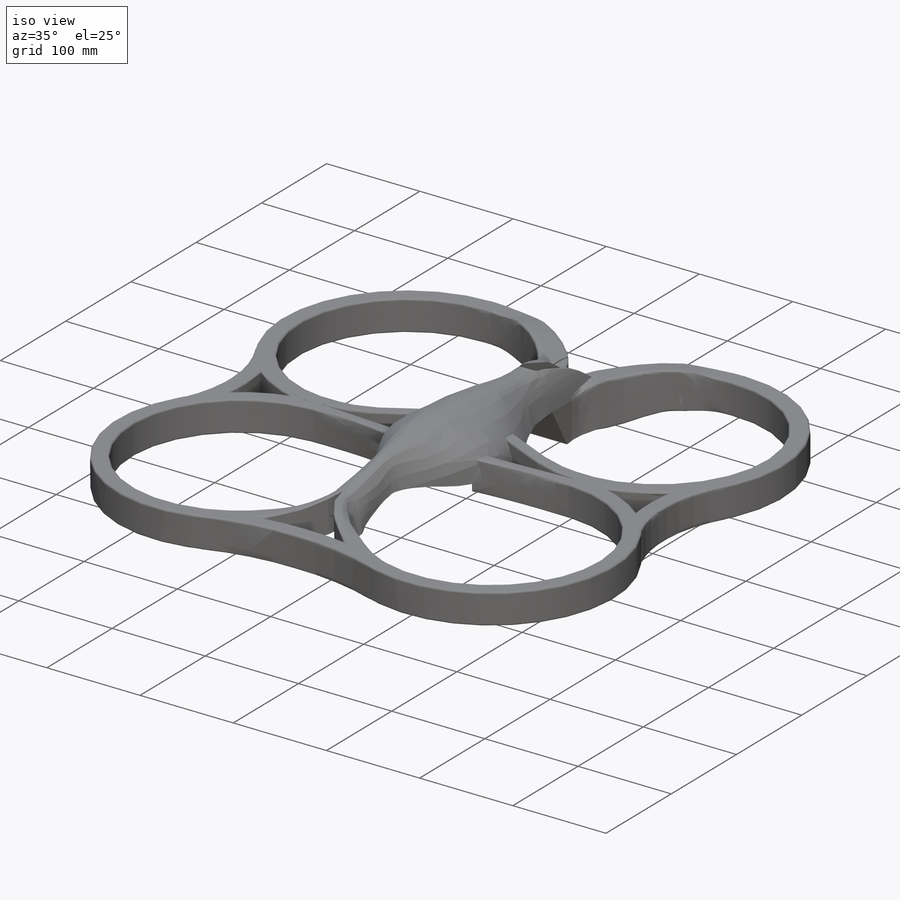
[diagram: iso view]
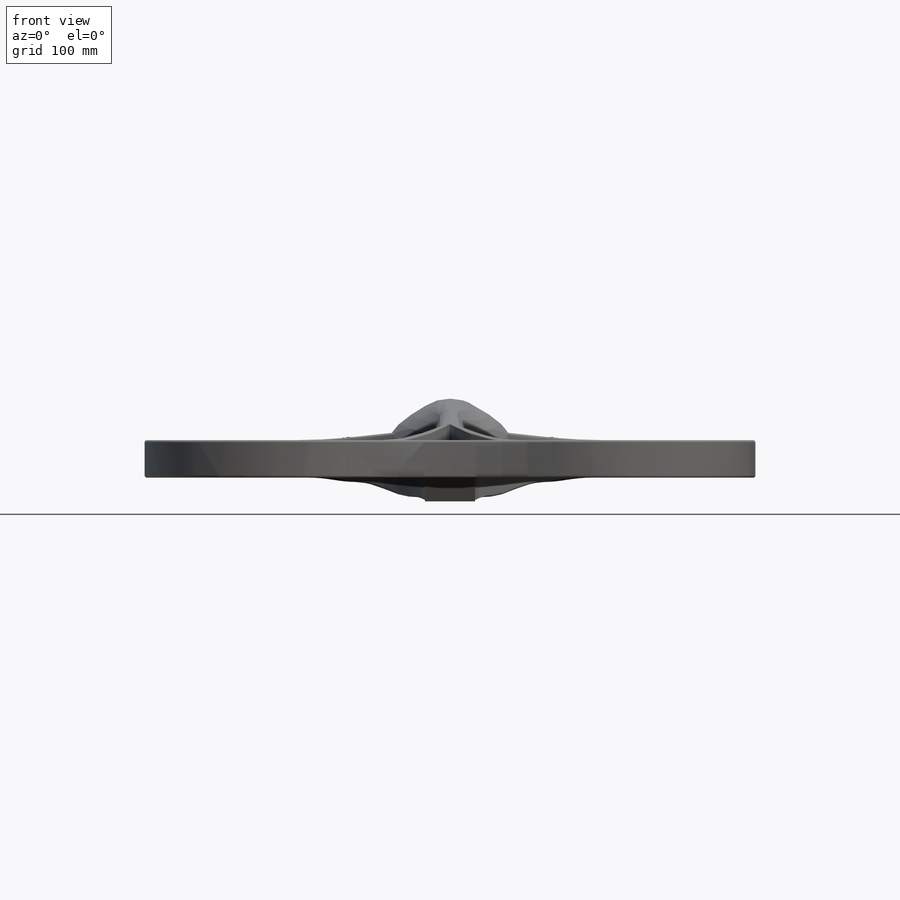
[diagram: front view]
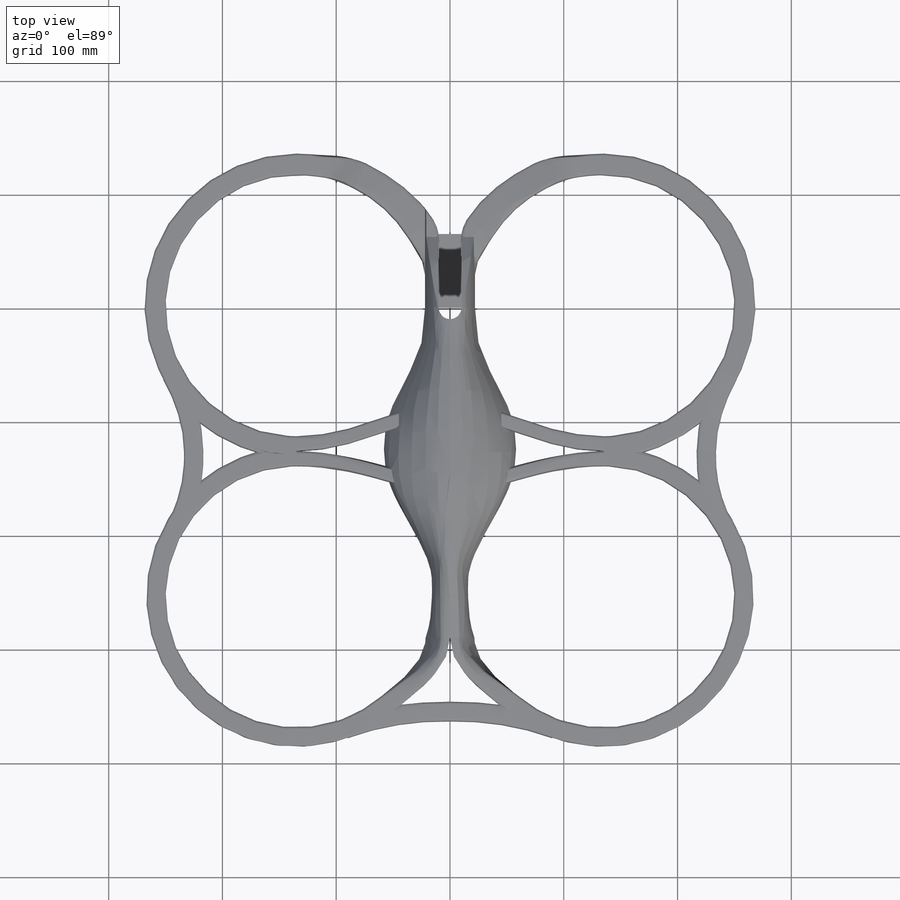
[diagram: top view]
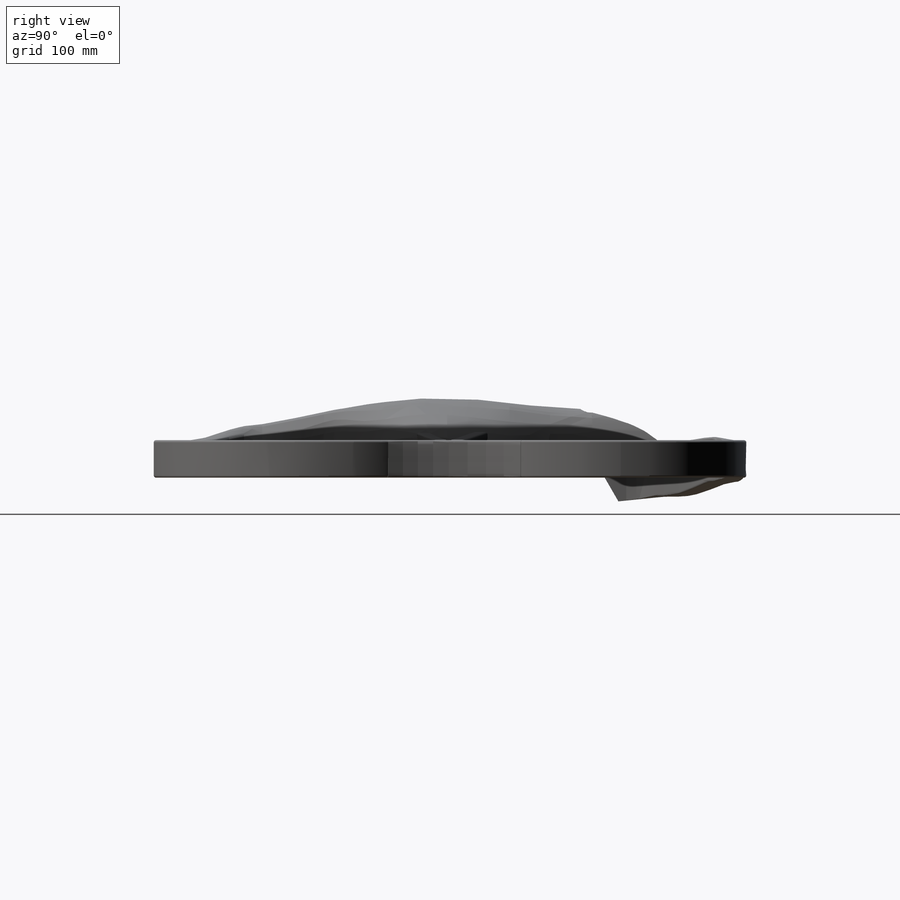
[diagram: right view]
SOLIDWORKS PART (.sldprt)
format: sldprt  version: not decoded by parser v0  size: 1,703,424 bytes
history: native  units: mm
features: sketch x38, plane x20, sweep x5, cut_extrude x4, material x1, extrude x1, mirror x1 (+11 scaffold rows collapsed)
feature tree (81):
  scaffold x11  (default folders/planes/origin — collapsed)
  material  "Matériau <non spécifié>"
  plane  "Face"
  plane  "Dessus"
  plane  "Droite"
  plane  "Plan1"  Offset=40mm
  plane  "Plan2"  Offset=40mm
  plane  "Plan3"  Offset=40mm
  plane  "Plan4"  Offset=40mm
  plane  "Plan5"  Offset=40mm
  plane  "Plan6"  Offset=30mm
  plane  "Plan7"  Offset=20mm
  plane  "Plan8"  Offset=20mm
  plane  "Plan9"  Offset=20mm
  sketch  "Esquisse1"  dims[c1.D3=16.5mm c1.D1=44.0mm c1.D2=38.0mm c2.D1=22.0mm c2.D2=25.0mm c2.D4=~23.99878mm]
  sketch  "Esquisse3"  dims[D2=16.0mm D1=28.0mm D3=26.5mm]
  sketch  "Esquisse4"  dims[D2=32.0mm D1=48.0mm D3=16.0mm]
  sketch  "Esquisse5"  dims[D2=38.0mm D1=58.0mm D3=12.0mm]
  sketch  "Esquisse6"  dims[c1.D2=38.0mm c1.D3=~25.336188mm c1.D1=51.0mm c2.D3=12.0mm]
  sketch  "Esquisse7"  dims[D2=20.0mm D1=30.0mm D3=25.0mm]
  sketch  "Esquisse8"  dims[D2=10.0mm D1=19.0mm D3=30.0mm]
  sketch  "Esquisse24"  dims[D1=12.0mm D2=23.0mm D3=17.0mm]
  sketch  "Esquisse25"  dims[D1=12.0mm D2=20.0mm D3=17.0mm]
  sketch  "Esquisse26"  dims[D1=6.0mm D2=20.0mm D3=21.5mm]
  sketch  "Esquisse27"  dims[c1.D1=40.0mm c1.D2=~45.590405mm c2.D1=40.0mm c2.D2=80.0mm c2.D3=~43.207431mm c3.D3=120.0deg c3.D4=38.12mm c3.D2=65.0mm]
  extrude  "Extrusion2"  Depth=44mm
  sketch  "Esquisse22"  dims[D1=10.0mm D2=0.5mm]
  cut_extrude  "Extrusion7"  Depth=43mm
  sketch  "Esquisse23"  dims[D1=10.0mm]
  sketch  "Esquisse28"
  plane  "Plan10"  Offset=135mm
  sketch  "Esquisse29"  dims[D1=254.0mm D2=2.0mm]
  plane  "Plan11"
  sketch  "Esquisse30"  dims[c1.D4=2.0mm c1.D1=115.0mm c1.D2=~12.847858mm c2.D2=~179.953945deg c3.D2=~12.847858mm c4.D2=~179.953945deg c5.D2=17.0mm c5.D3=16.5mm c5.D4=16.5mm c6.D3=~16.470594mm c6.D4=16.5mm c6.D5=~1.025185deg c7.D5=~13.819938mm c8.D5=~0.046055deg c9.D5=~12.961144mm c10.D5=~179.953945deg c11.D5=~12.508709mm c12.D5=~0.046055deg c13.D5=12.0mm c13.D6=~12.931708mm c14.D6=~179.953945deg c15.D6=33.0mm]
  sketch  "Esquisse31"  dims[D1=115.0mm]
  cut_extrude  "Extrusion8"  [1 undecoded]
  sweep  "Balayage2"
  sketch  "Esquisse30<5>"
  sketch  "Esquisse34"
  cut_extrude  "Extrusion9"  [1 undecoded]
  plane  "Plan12"  Offset=30mm
  sketch  "Esquisse35"
  plane  "Plan13"
  sketch  "Esquisse36"  dims[c1.D4=2.0mm c1.D1=27.0mm c1.D2=45.0mm c1.D3=115.0mm c2.D4=~45.015973mm]
  plane  "Plan14"
  sketch  "Esquisse37"  dims[c1.D5=2.0mm c1.D1=115.0mm c1.D2=24.0mm c1.D3=40.0mm c2.D2=24.0mm c2.D3=40.0mm c2.D4=36.0mm]
  sketch  "Esquisse36<5>"
  plane  "Plan15"
  sketch  "Esquisse38"  dims[D3=2.0mm D1=18.5mm D2=33.0mm D4=115.0mm D5=19.12mm]
  sketch  "Esquisse39"  dims[D1=115.0mm]
  sweep  "Balayage3"
  sketch  "Esquisse38<2>"
  sketch  "Esquisse40"  dims[D1=2.0mm D2=13.0mm D3=33.0mm]
  plane  "Plan16"  Offset=45mm
  sketch  "Esquisse45"  dims[D1=2.0mm D2=13.0mm D3=33.0mm D4=12.0mm]
  sketch  "Esquisse44"  dims[D3=2.0mm D1=13.0mm D2=33.0mm]
  sketch  "Esquisse46"  dims[D4=2.0mm D1=13.0mm D2=33.0mm D3=12.0mm]
  sketch  "Esquisse47"  dims[D1=157.1mm]
  cut_extrude  "Extrusion10"  Depth=60mm
  sketch  "Esquisse37<3>"
  plane  "Plan17"  Offset=126mm
  sketch  "Esquisse48"  dims[c1.D2=2.0mm c1.D1=17.0mm c2.D2=~33.010058mm]
  sketch  "Esquisse49"
  sweep  "Balayage4"
  sketch  "Esquisse52"  dims[D1=2.0mm D2=17.0mm D3=33.0mm]
  sketch  "Esquisse53"
  sweep  "Balayage11"
  sketch  "Esquisse54"  dims[D1=2.0mm D2=17.0mm]
  sketch  "Esquisse55"
  sweep  "Balayage12"
  mirror  "Symétrie1"
decode coverage: 31 of 49 modeling features carry decoded parameters
note: ~ marks probable driven/reference dimensions
note: 2 parameter values undecoded
summary: profile_refs inferred from adjacent sketches, not decoded
note: suppression state not decoded; provenance and decode notes live in map.json
